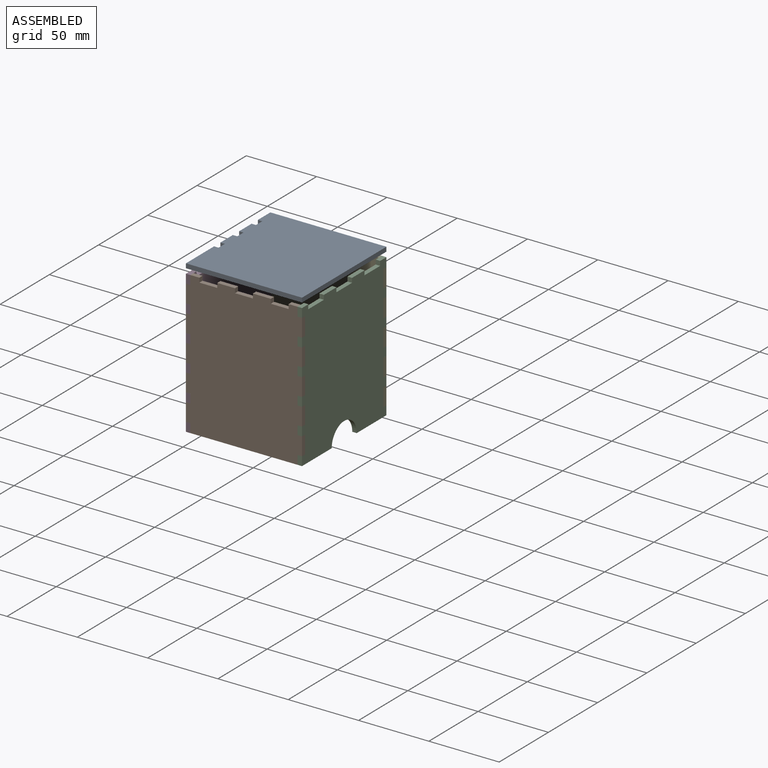
[diagram: assembled view]
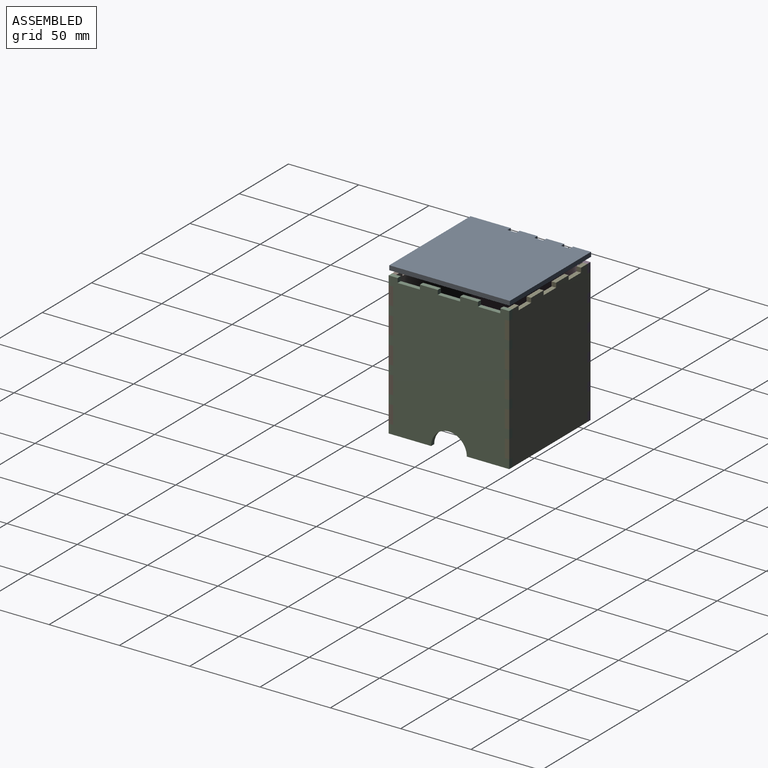
[diagram: assembled view, second angle]
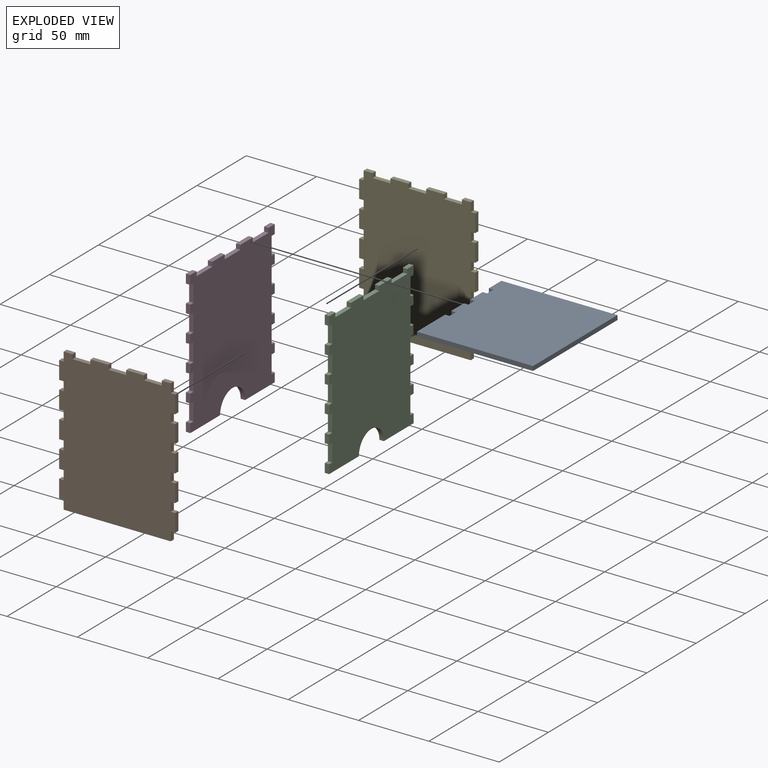
[diagram: exploded view]
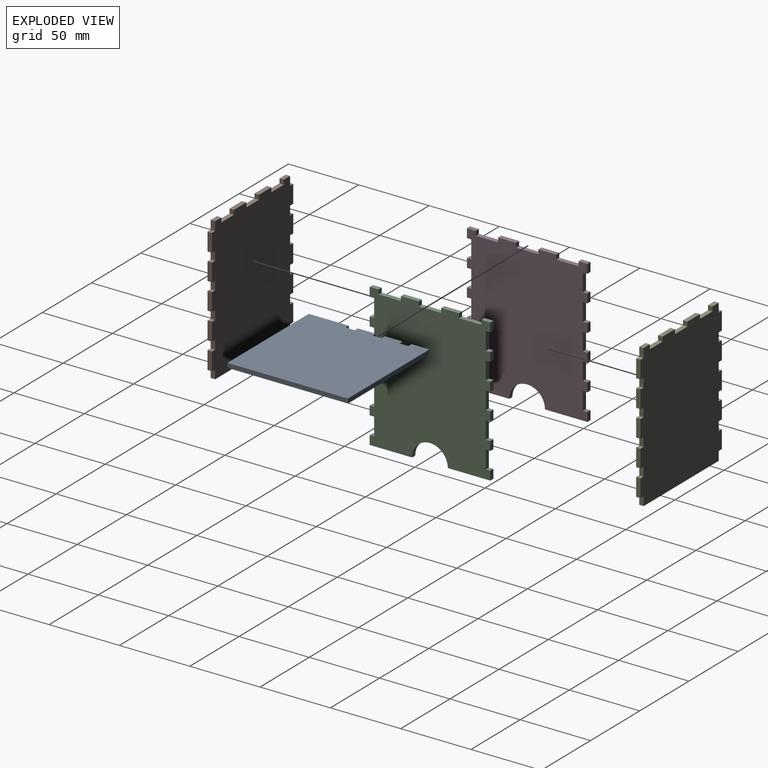
[diagram: exploded view, second angle]
ASSEMBLY  parts=5 mates=3
PART A: 18 faces, bbox 82.6x85.7x3.2 mm
  f0: plane 12.7x3.18mm, normal (-1,0,0), area 40.3mm2, adj f7,f8,f14,f15
  f1: plane 12.7x3.18mm, normal (-1,0,0), area 40.3mm2, adj f7,f8,f11,f12
  f2: plane 28.58x3.18mm, normal (-1,0,0), area 90.7mm2, adj f4,f7,f8,f9
  f3: plane 12.7x3.18mm, normal (-1,0,0), area 40.3mm2, adj f6,f7,f8,f17
  f4: plane 82.55x3.18mm, normal (0,-1,0), area 262.1mm2, adj f2,f5,f7,f8
  f5: plane 85.73x3.18mm, normal (1,0,0), area 272.2mm2, adj f4,f6,f7,f8
  f6: plane 82.55x3.18mm, normal (0,1,0), area 262.1mm2, adj f3,f5,f7,f8
  f7: plane 85.73x82.55mm, normal (0,0,1), area 7016.1mm2, adj f0,f1,f2,f3,f4,f5,f6,f9
  f8: plane 85.73x82.55mm, normal (0,0,-1), area 7016.1mm2, adj f0,f1,f2,f3,f4,f5,f6,f9
  f9: plane 3.18x3.18mm, normal (0,1,0), area 10.1mm2, adj f2,f7,f8,f10
  f10: plane 6.35x3.18mm, normal (-1,0,0), area 20.2mm2, adj f7,f8,f9,f11
  f11: plane 3.18x3.18mm, normal (0,-1,0), area 10.1mm2, adj f1,f7,f8,f10
  f12: plane 3.18x3.18mm, normal (0,1,0), area 10.1mm2, adj f1,f7,f8,f13
  f13: plane 6.35x3.18mm, normal (-1,0,0), area 20.2mm2, adj f7,f8,f12,f14
  f14: plane 3.18x3.18mm, normal (0,-1,0), area 10.1mm2, adj f0,f7,f8,f13
  f15: plane 3.18x3.18mm, normal (0,1,0), area 10.1mm2, adj f0,f7,f8,f16
  f16: plane 6.35x3.18mm, normal (-1,0,0), area 20.2mm2, adj f7,f8,f15,f17
  f17: plane 3.18x3.18mm, normal (0,-1,0), area 10.1mm2, adj f3,f7,f8,f16
PART B: 58 faces, bbox 82.6x3.2x101.6 mm
  f0: plane 12.7x3.18mm, normal (0,0,1), area 40.3mm2, adj f3,f4,f53,f55
  f1: plane 12.7x3.18mm, normal (0,0,1), area 40.3mm2, adj f3,f4,f50,f52
  f2: plane 6.35x3.18mm, normal (0,0,1), area 20.2mm2, adj f3,f4,f19,f49
  f3: plane 101.6x82.55mm, normal (0,-1,0), area 8024.2mm2, adj f0,f1,f2,f5,f6,f7,f8,f9
  f4: plane 101.6x82.55mm, normal (0,1,0), area 8024.2mm2, adj f0,f1,f2,f5,f6,f7,f8,f9
  f5: plane 12.7x3.18mm, normal (-1,0,0), area 40.3mm2, adj f3,f4,f38,f47
  f6: plane 12.7x3.18mm, normal (-1,0,0), area 40.3mm2, adj f3,f4,f35,f36
  f7: plane 12.7x3.18mm, normal (-1,0,0), area 40.3mm2, adj f3,f4,f32,f33
  f8: plane 12.7x3.18mm, normal (-1,0,0), area 40.3mm2, adj f3,f4,f29,f30
  f9: plane 12.7x3.18mm, normal (-1,0,0), area 40.3mm2, adj f3,f4,f18,f27
  f10: plane 76.2x3.18mm, normal (0,0,-1), area 241.9mm2, adj f3,f4,f17,f45
  f11: plane 12.7x3.18mm, normal (1,0,0), area 40.3mm2, adj f3,f4,f25,f44
  f12: plane 12.7x3.18mm, normal (1,0,0), area 40.3mm2, adj f3,f4,f39,f42
  f13: plane 12.7x3.18mm, normal (1,0,0), area 40.3mm2, adj f3,f4,f24,f46
  f14: plane 12.7x3.18mm, normal (1,0,0), area 40.3mm2, adj f3,f4,f23,f40
  f15: plane 12.7x3.18mm, normal (1,0,0), area 40.3mm2, adj f3,f4,f20,f21
  f16: plane 6.35x3.18mm, normal (0,0,1), area 20.2mm2, adj f3,f4,f48,f56
  f17: plane 6.35x3.18mm, normal (-1,0,0), area 20.2mm2, adj f3,f4,f10,f18
  f18: plane 3.18x3.18mm, normal (0,0,-1), area 10.1mm2, adj f3,f4,f9,f17
  f19: plane 6.35x3.18mm, normal (1,0,0), area 20.2mm2, adj f2,f3,f4,f20
  f20: plane 3.18x3.18mm, normal (0,0,1), area 10.1mm2, adj f3,f4,f15,f19
  f21: plane 3.18x3.18mm, normal (0,0,-1), area 10.1mm2, adj f3,f4,f15,f22
  f22: plane 6.35x3.18mm, normal (1,0,0), area 20.2mm2, adj f3,f4,f21,f23
  f23: plane 3.18x3.18mm, normal (0,0,1), area 10.1mm2, adj f3,f4,f14,f22
  f24: plane 3.18x3.18mm, normal (0,0,1), area 10.1mm2, adj f3,f4,f13,f26
  f25: plane 3.18x3.18mm, normal (0,0,-1), area 10.1mm2, adj f3,f4,f11,f26
  f26: plane 6.35x3.18mm, normal (1,0,0), area 20.2mm2, adj f3,f4,f24,f25
  f27: plane 3.18x3.18mm, normal (0,0,1), area 10.1mm2, adj f3,f4,f9,f28
  f28: plane 6.35x3.18mm, normal (-1,0,0), area 20.2mm2, adj f3,f4,f27,f29
  f29: plane 3.18x3.18mm, normal (0,0,-1), area 10.1mm2, adj f3,f4,f8,f28
  f30: plane 3.18x3.18mm, normal (0,0,1), area 10.1mm2, adj f3,f4,f8,f31
  f31: plane 6.35x3.18mm, normal (-1,0,0), area 20.2mm2, adj f3,f4,f30,f32
  f32: plane 3.18x3.18mm, normal (0,0,-1), area 10.1mm2, adj f3,f4,f7,f31
  f33: plane 3.18x3.18mm, normal (0,0,1), area 10.1mm2, adj f3,f4,f7,f34
  f34: plane 6.35x3.18mm, normal (-1,0,0), area 20.2mm2, adj f3,f4,f33,f35
  f35: plane 3.18x3.18mm, normal (0,0,-1), area 10.1mm2, adj f3,f4,f6,f34
  f36: plane 3.18x3.18mm, normal (0,0,1), area 10.1mm2, adj f3,f4,f6,f37
  f37: plane 6.35x3.18mm, normal (-1,0,0), area 20.2mm2, adj f3,f4,f36,f38
  f38: plane 3.18x3.18mm, normal (0,0,-1), area 10.1mm2, adj f3,f4,f5,f37
  f39: plane 3.18x3.18mm, normal (0,0,1), area 10.1mm2, adj f3,f4,f12,f41
  f40: plane 3.18x3.18mm, normal (0,0,-1), area 10.1mm2, adj f3,f4,f14,f41
  f41: plane 6.35x3.18mm, normal (1,0,0), area 20.2mm2, adj f3,f4,f39,f40
  f42: plane 3.18x3.18mm, normal (0,0,-1), area 10.1mm2, adj f3,f4,f12,f43
  f43: plane 6.35x3.18mm, normal (1,0,0), area 20.2mm2, adj f3,f4,f42,f44
  f44: plane 3.18x3.18mm, normal (0,0,1), area 10.1mm2, adj f3,f4,f11,f43
  f45: plane 6.35x3.18mm, normal (1,0,0), area 20.2mm2, adj f3,f4,f10,f46
  f46: plane 3.18x3.18mm, normal (0,0,-1), area 10.1mm2, adj f3,f4,f13,f45
  f47: plane 3.18x3.18mm, normal (0,0,1), area 10.1mm2, adj f3,f4,f5,f48
  f48: plane 6.35x3.18mm, normal (-1,0,0), area 20.2mm2, adj f3,f4,f16,f47
  f49: plane 3.18x3.18mm, normal (-1,0,0), area 10.1mm2, adj f2,f3,f4,f51
  f50: plane 3.18x3.18mm, normal (1,0,0), area 10.1mm2, adj f1,f3,f4,f51
  f51: plane 12.7x3.18mm, normal (0,0,1), area 40.3mm2, adj f3,f4,f49,f50
  f52: plane 3.18x3.18mm, normal (-1,0,0), area 10.1mm2, adj f1,f3,f4,f54
  f53: plane 3.18x3.18mm, normal (1,0,0), area 10.1mm2, adj f0,f3,f4,f54
  f54: plane 12.7x3.18mm, normal (0,0,1), area 40.3mm2, adj f3,f4,f52,f53
  f55: plane 3.18x3.18mm, normal (-1,0,0), area 10.1mm2, adj f0,f3,f4,f57
  f56: plane 3.18x3.18mm, normal (1,0,0), area 10.1mm2, adj f3,f4,f16,f57
  f57: plane 12.7x3.18mm, normal (0,0,1), area 40.3mm2, adj f3,f4,f55,f56
PART C: 60 faces, bbox 3.2x85.7x101.6 mm
  f0: plane 30.16x3.18mm, normal (0,0,-1), area 95.8mm2, adj f4,f5,f10,f59
  f1: plane 12.7x3.18mm, normal (0,0,1), area 40.3mm2, adj f4,f5,f53,f56
  f2: plane 12.7x3.18mm, normal (0,0,1), area 40.3mm2, adj f4,f5,f50,f55
  f3: plane 6.35x3.18mm, normal (0,0,1), area 20.2mm2, adj f4,f5,f18,f52
  f4: plane 101.6x85.73mm, normal (1,0,0), area 7901.9mm2, adj f0,f1,f2,f3,f6,f7,f8,f9
  f5: plane 101.6x85.73mm, normal (-1,0,0), area 7901.9mm2, adj f0,f1,f2,f3,f6,f7,f8,f9
  f6: plane 6.35x3.18mm, normal (0,-1,0), area 20.2mm2, adj f4,f5,f20,f47
  f7: plane 6.35x3.18mm, normal (0,-1,0), area 20.2mm2, adj f4,f5,f44,f49
  f8: plane 6.35x3.18mm, normal (0,-1,0), area 20.2mm2, adj f4,f5,f41,f46
  f9: plane 6.35x3.18mm, normal (0,-1,0), area 20.2mm2, adj f4,f5,f38,f43
  f10: plane 6.35x3.18mm, normal (0,-1,0), area 20.2mm2, adj f0,f4,f5,f21
  f11: plane 6.35x3.18mm, normal (0,1,0), area 20.2mm2, adj f4,f5,f17,f37
  f12: plane 6.35x3.18mm, normal (0,1,0), area 20.2mm2, adj f4,f5,f34,f35
  f13: plane 6.35x3.18mm, normal (0,1,0), area 20.2mm2, adj f4,f5,f26,f31
  f14: plane 6.35x3.18mm, normal (0,1,0), area 20.2mm2, adj f4,f5,f24,f28
  f15: plane 6.35x3.18mm, normal (0,1,0), area 20.2mm2, adj f4,f5,f23,f32
  f16: plane 6.35x3.18mm, normal (0,-1,0), area 20.2mm2, adj f4,f5,f19,f40
  f17: plane 30.16x3.18mm, normal (0,0,-1), area 95.8mm2, adj f4,f5,f11,f59
  f18: plane 6.35x3.18mm, normal (0,1,0), area 20.2mm2, adj f3,f4,f5,f29
  f19: plane 6.35x3.18mm, normal (0,0,1), area 20.2mm2, adj f4,f5,f16,f57
  f20: plane 3.18x3.18mm, normal (0,0,-1), area 10.1mm2, adj f4,f5,f6,f22
  f21: plane 3.18x3.18mm, normal (0,0,1), area 10.1mm2, adj f4,f5,f10,f22
  f22: plane 12.7x3.18mm, normal (0,-1,0), area 40.3mm2, adj f4,f5,f20,f21
  f23: plane 3.18x3.18mm, normal (0,0,1), area 10.1mm2, adj f4,f5,f15,f25
  f24: plane 3.18x3.18mm, normal (0,0,-1), area 10.1mm2, adj f4,f5,f14,f25
  f25: plane 12.7x3.18mm, normal (0,1,0), area 40.3mm2, adj f4,f5,f23,f24
  f26: plane 3.18x3.18mm, normal (0,0,-1), area 10.1mm2, adj f4,f5,f13,f27
  f27: plane 12.7x3.18mm, normal (0,1,0), area 40.3mm2, adj f4,f5,f26,f28
  f28: plane 3.18x3.18mm, normal (0,0,1), area 10.1mm2, adj f4,f5,f14,f27
  f29: plane 3.18x3.18mm, normal (0,0,-1), area 10.1mm2, adj f4,f5,f18,f30
  f30: plane 12.7x3.18mm, normal (0,1,0), area 40.3mm2, adj f4,f5,f29,f31
  f31: plane 3.18x3.18mm, normal (0,0,1), area 10.1mm2, adj f4,f5,f13,f30
  f32: plane 3.18x3.18mm, normal (0,0,-1), area 10.1mm2, adj f4,f5,f15,f33
  f33: plane 12.7x3.18mm, normal (0,1,0), area 40.3mm2, adj f4,f5,f32,f34
  f34: plane 3.18x3.18mm, normal (0,0,1), area 10.1mm2, adj f4,f5,f12,f33
  f35: plane 3.18x3.18mm, normal (0,0,-1), area 10.1mm2, adj f4,f5,f12,f36
  f36: plane 12.7x3.18mm, normal (0,1,0), area 40.3mm2, adj f4,f5,f35,f37
  f37: plane 3.18x3.18mm, normal (0,0,1), area 10.1mm2, adj f4,f5,f11,f36
  f38: plane 3.18x3.18mm, normal (0,0,1), area 10.1mm2, adj f4,f5,f9,f39
  f39: plane 12.7x3.18mm, normal (0,-1,0), area 40.3mm2, adj f4,f5,f38,f40
  f40: plane 3.18x3.18mm, normal (0,0,-1), area 10.1mm2, adj f4,f5,f16,f39
  f41: plane 3.18x3.18mm, normal (0,0,1), area 10.1mm2, adj f4,f5,f8,f42
  f42: plane 12.7x3.18mm, normal (0,-1,0), area 40.3mm2, adj f4,f5,f41,f43
  f43: plane 3.18x3.18mm, normal (0,0,-1), area 10.1mm2, adj f4,f5,f9,f42
  f44: plane 3.18x3.18mm, normal (0,0,1), area 10.1mm2, adj f4,f5,f7,f45
  f45: plane 12.7x3.18mm, normal (0,-1,0), area 40.3mm2, adj f4,f5,f44,f46
  f46: plane 3.18x3.18mm, normal (0,0,-1), area 10.1mm2, adj f4,f5,f8,f45
  f47: plane 3.18x3.18mm, normal (0,0,1), area 10.1mm2, adj f4,f5,f6,f48
  f48: plane 12.7x3.18mm, normal (0,-1,0), area 40.3mm2, adj f4,f5,f47,f49
  f49: plane 3.18x3.18mm, normal (0,0,-1), area 10.1mm2, adj f4,f5,f7,f48
  f50: plane 3.18x3.18mm, normal (0,1,0), area 10.1mm2, adj f2,f4,f5,f51
  f51: plane 15.88x3.18mm, normal (0,0,1), area 50.4mm2, adj f4,f5,f50,f52
  f52: plane 3.18x3.18mm, normal (0,-1,0), area 10.1mm2, adj f3,f4,f5,f51
  f53: plane 3.18x3.18mm, normal (0,1,0), area 10.1mm2, adj f1,f4,f5,f54
  f54: plane 15.88x3.18mm, normal (0,0,1), area 50.4mm2, adj f4,f5,f53,f55
  f55: plane 3.18x3.18mm, normal (0,-1,0), area 10.1mm2, adj f2,f4,f5,f54
  f56: plane 3.18x3.18mm, normal (0,-1,0), area 10.1mm2, adj f1,f4,f5,f58
  f57: plane 3.18x3.18mm, normal (0,1,0), area 10.1mm2, adj f4,f5,f19,f58
  f58: plane 15.88x3.18mm, normal (0,0,1), area 50.4mm2, adj f4,f5,f56,f57
  f59: extruded ~25.4x12.7mm, area 126.7mm2, adj f0,f4,f5,f17
PART D: same geometry as C
PART E: same geometry as B
PLACE A t=(33.53,-42.94,-3.48)mm
PLACE B t=(33.72,-82.9,-57.64)mm
PLACE C t=(71.82,-43.21,-57.64)mm
PLACE D t=(-7.55,-43.21,-57.64)mm
PLACE E t=(33.72,-0.35,-57.64)mm
MATE fastened C.f4 <-> E.f13  axis (1,0,0) through (75,-3.52,-95.74)mm
MATE fastened D.f13 <-> E.f4  axis (0,1,0) through (-4.38,-0.35,-29.06)mm
MATE fastened D.f9 <-> B.f3  axis (0,-1,0) through (-4.38,-86.07,-29.06)mm
